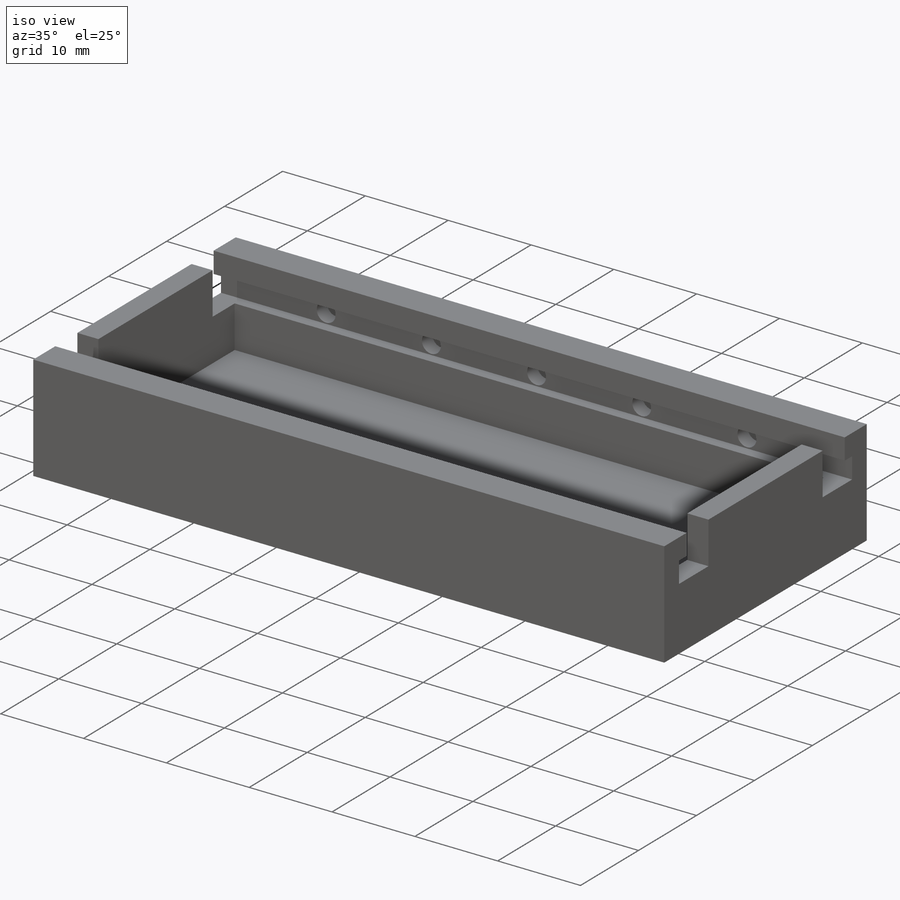
[diagram: iso view]
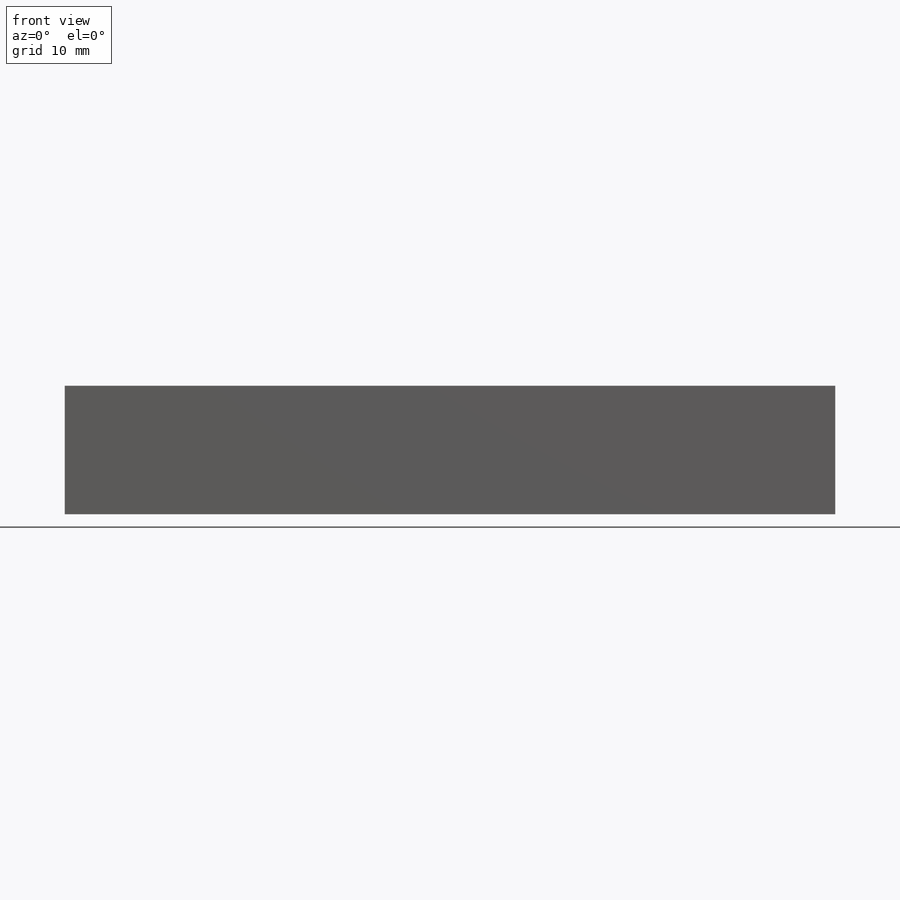
[diagram: front view]
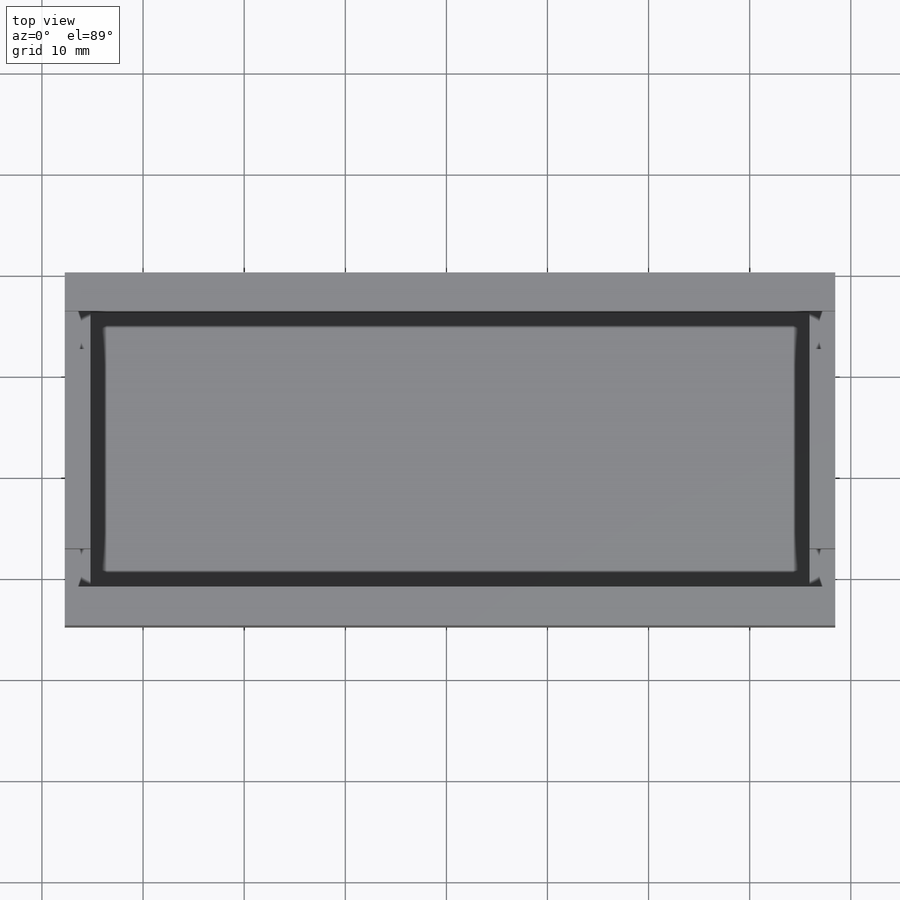
[diagram: top view]
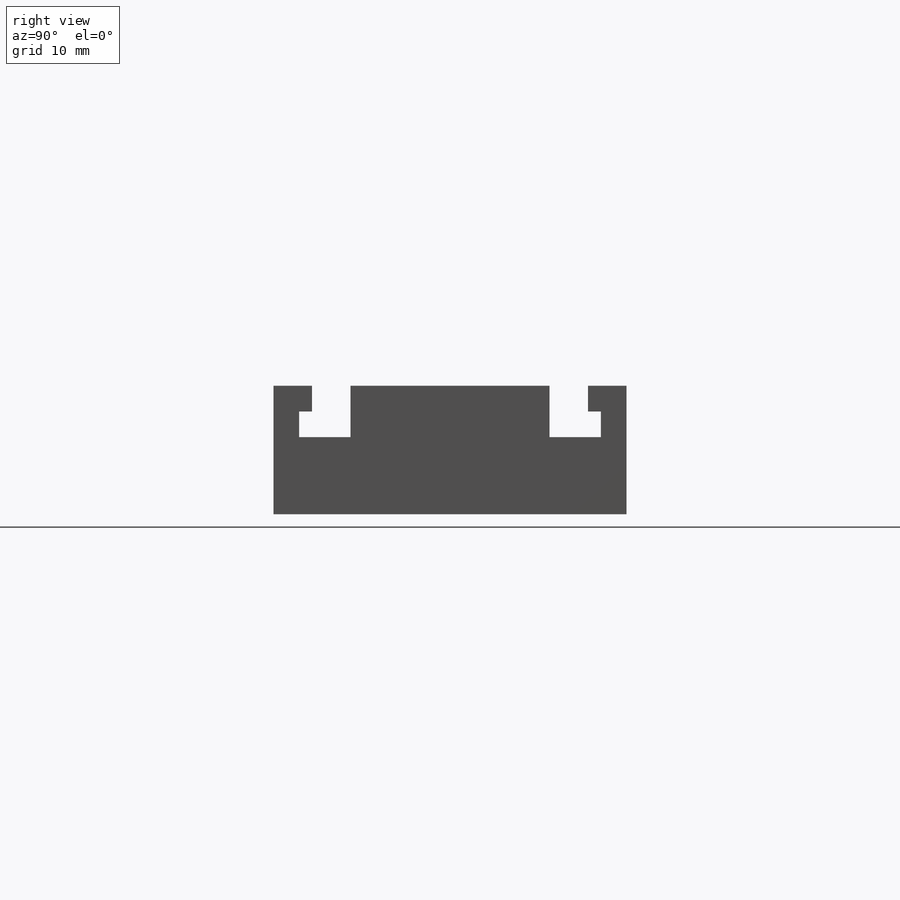
[diagram: right view]
SOLIDWORKS PART (.sldprt)
format: sldprt  version: not decoded by parser v0  size: 384,000 bytes
history: native  units: mm
features: sketch x6, extrude x4, shell x2, cut_extrude x2, material x1 (+13 scaffold rows collapsed)
feature tree (28):
  scaffold x13  (default folders/planes/origin — collapsed)
  material  "Material <not specified>"
  sketch  "Sketch1"  dims[D1=76.2mm D2=34.925mm]
  extrude  "Boss-Extrude1"  Depth=12.7mm
  shell  "Shell1"  Thickness=2.54mm
  sketch  "Sketch10"  dims[D1=76.2mm D2=2.54mm D3=2.54mm D4=0.0mm D5=19.05mm]
  cut_extrude  "Cut-Extrude4"  Depth=1.27mm
  sketch  "Sketch11"  dims[D1=27.305mm D2=27.305mm]
  cut_extrude  "Cut-Extrude5"  Depth=2.54mm
  shell  "Fill Pattern2"  Thickness=2.286mm
  sketch  "Sketch14"  dims[D1=6.35mm D2=1.27mm D3=6.35mm D4=6.35mm]
  extrude  "Boss-Extrude2"  Depth=0.762mm
  sketch  "Sketch15"  dims[D1=1.27mm D2=6.35mm D3=6.35mm D4=6.35mm]
  extrude  "Boss-Extrude3"  Depth=0.762mm
  sketch  "Sketch17"
  extrude  "Boss-Extrude4"  Depth=5.08mm
decode coverage: 13 of 14 modeling features carry decoded parameters
note: suppression state not decoded; provenance and decode notes live in map.json
